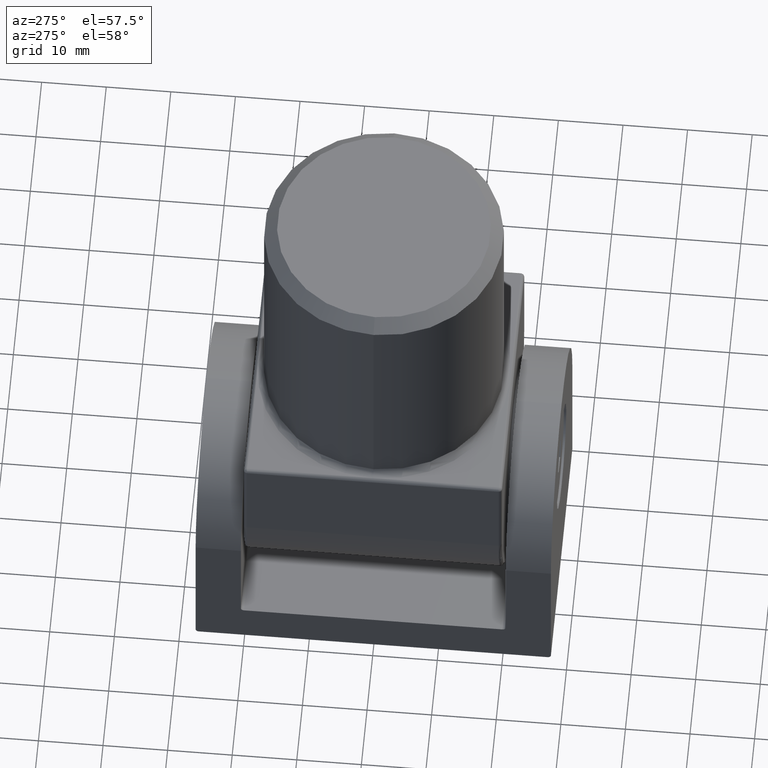
[diagram: clean part render]
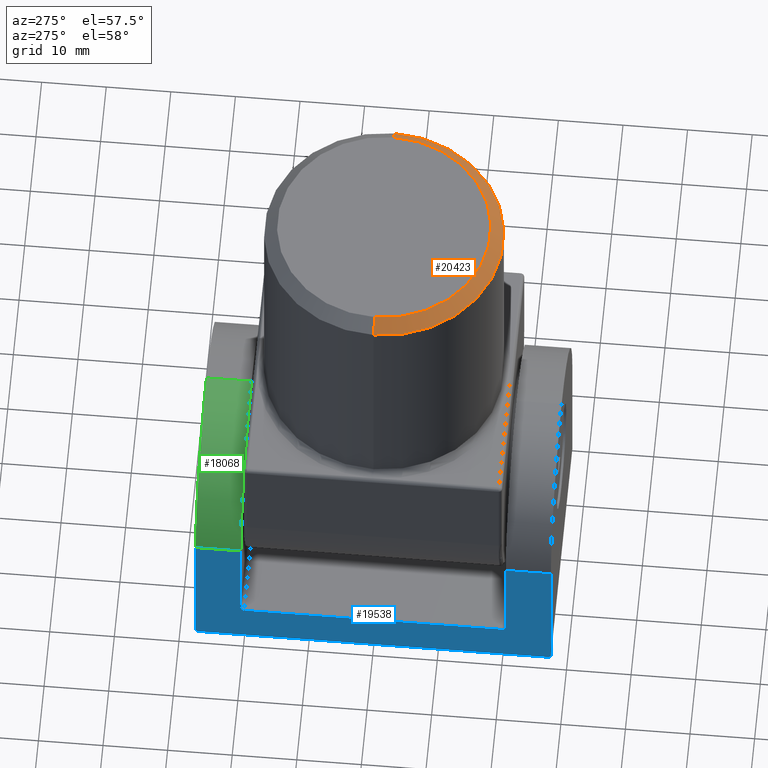
[diagram: same view with three faces highlighted in distinct colors, each labeled with its STEP entity id]
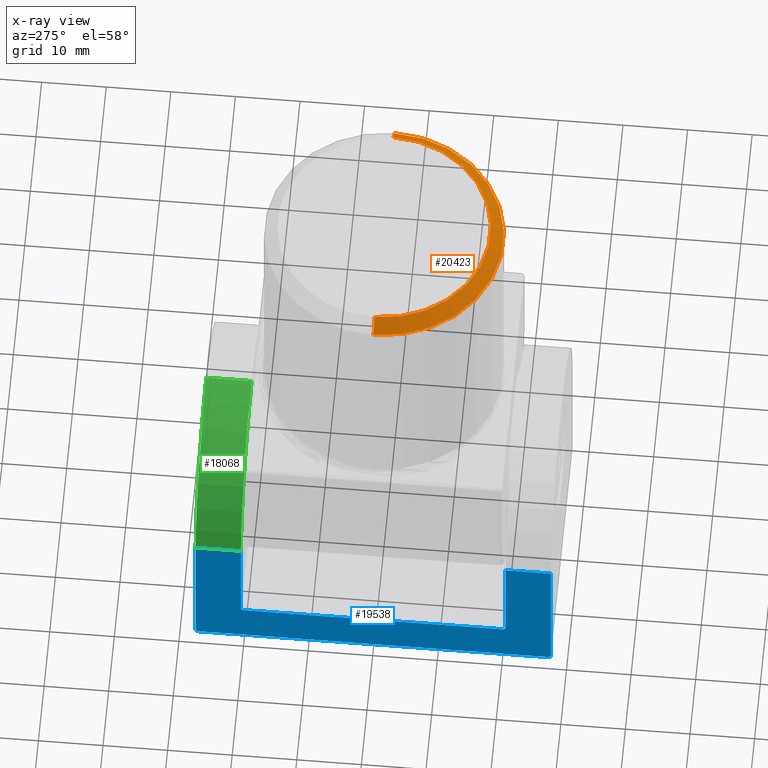
[diagram: x-ray of the same camera — body ghosted, the three highlighted faces saturated]
A machine part, auxiliary view with three faces highlighted in distinct colors.
The next image is the same camera in x-ray (body ghosted, the three faces saturated) — at least one of them is partly hidden behind the body in this view.
Their STEP definitions:

[orange] entity #20423 — the highlighted conical surface has half-angle 45 deg.
#1476 = EDGE_CURVE ( 'NONE', #18802, #10723, #3599, .T. ) ;
#1880 = VERTEX_POINT ( 'NONE', #8941 ) ;
#1917 = VERTEX_POINT ( 'NONE', #16874 ) ;
#2069 = CIRCLE ( 'NONE', #13037, 18.50000000000000000 ) ;
#3449 = DIRECTION ( 'NONE',  ( 0.7071067811865456854, 8.659560562354909439E-17, -0.7071067811865493491 ) ) ;
#3599 = CIRCLE ( 'NONE', #17921, 16.49999999999997158 ) ;
#3628 = CONICAL_SURFACE ( 'NONE', #14948, 16.49999999999997158, 0.7853981633974457255 ) ;
#3869 = DIRECTION ( 'NONE',  ( 0.000000000000000000, 0.000000000000000000, -1.000000000000000000 ) ) ;
#4084 = EDGE_CURVE ( 'NONE', #1880, #1917, #2069, .T. ) ;
#4573 = ORIENTED_EDGE ( 'NONE', *, *, #4084, .F. ) ;
#5184 = CARTESIAN_POINT ( 'NONE',  ( 0.000000000000000000, 0.000000000000000000, 39.49999999999996447 ) ) ;
#6080 = DIRECTION ( 'NONE',  ( 1.000000000000000000, 0.000000000000000000, 0.000000000000000000 ) ) ;
#6656 = CARTESIAN_POINT ( 'NONE',  ( 16.49999999999997158, 2.020667218593129550E-15, 41.50000000000000000 ) ) ;
#7646 = CARTESIAN_POINT ( 'NONE',  ( 0.000000000000000000, 0.000000000000000000, 41.50000000000000000 ) ) ;
#8941 = CARTESIAN_POINT ( 'NONE',  ( 18.50000000000000000, 2.265596578422603396E-15, 39.49999999999996447 ) ) ;
#9192 = EDGE_LOOP ( 'NONE', ( #11301, #13812, #17904, #4573 ) ) ;
#9896 = DIRECTION ( 'NONE',  ( 0.000000000000000000, 0.000000000000000000, -1.000000000000000000 ) ) ;
#10101 = DIRECTION ( 'NONE',  ( -1.000000000000000000, 0.000000000000000000, 0.000000000000000000 ) ) ;
#10723 = VERTEX_POINT ( 'NONE', #13197 ) ;
#10754 = FACE_OUTER_BOUND ( 'NONE', #9192, .T. ) ;
#10881 = DIRECTION ( 'NONE',  ( 0.000000000000000000, 0.000000000000000000, 1.000000000000000000 ) ) ;
#11091 = EDGE_CURVE ( 'NONE', #18802, #1917, #13005, .T. ) ;
#11301 = ORIENTED_EDGE ( 'NONE', *, *, #11834, .F. ) ;
#11496 = DIRECTION ( 'NONE',  ( 1.000000000000000000, 0.000000000000000000, 0.000000000000000000 ) ) ;
#11786 = VECTOR ( 'NONE', #13518, 1000.000000000000000 ) ;
#11834 = EDGE_CURVE ( 'NONE', #10723, #1880, #18853, .T. ) ;
#12041 = CARTESIAN_POINT ( 'NONE',  ( -16.49999999999997158, 0.000000000000000000, 41.50000000000000000 ) ) ;
#13005 = LINE ( 'NONE', #13580, #11786 ) ;
#13037 = AXIS2_PLACEMENT_3D ( 'NONE', #5184, #9896, #11496 ) ;
#13197 = CARTESIAN_POINT ( 'NONE',  ( 16.49999999999997158, 2.143131898507866276E-15, 41.50000000000000000 ) ) ;
#13518 = DIRECTION ( 'NONE',  ( -0.7071067811865456854, 0.000000000000000000, -0.7071067811865493491 ) ) ;
#13580 = CARTESIAN_POINT ( 'NONE',  ( -16.49999999999997158, 0.000000000000000000, 41.50000000000000000 ) ) ;
#13812 = ORIENTED_EDGE ( 'NONE', *, *, #1476, .F. ) ;
#14948 = AXIS2_PLACEMENT_3D ( 'NONE', #16262, #3869, #10101 ) ;
#15421 = VECTOR ( 'NONE', #3449, 1000.000000000000000 ) ;
#16262 = CARTESIAN_POINT ( 'NONE',  ( 0.000000000000000000, 0.000000000000000000, 41.50000000000000000 ) ) ;
#16874 = CARTESIAN_POINT ( 'NONE',  ( -18.50000000000000000, 0.000000000000000000, 39.49999999999996447 ) ) ;
#17904 = ORIENTED_EDGE ( 'NONE', *, *, #11091, .T. ) ;
#17921 = AXIS2_PLACEMENT_3D ( 'NONE', #7646, #10881, #6080 ) ;
#18802 = VERTEX_POINT ( 'NONE', #12041 ) ;
#18853 = LINE ( 'NONE', #6656, #15421 ) ;
#20423 = ADVANCED_FACE ( 'NONE', ( #10754 ), #3628, .T. ) ;

[blue] entity #19538 — the highlighted planar face has unit normal (1, 0, 0).
#118 = DIRECTION ( 'NONE',  ( -1.000000000000000000, -0.000000000000000000, -0.000000000000000000 ) ) ;
#243 = AXIS2_PLACEMENT_3D ( 'NONE', #13674, #3157, #7671 ) ;
#867 = CARTESIAN_POINT ( 'NONE',  ( -19.00000000000000000, 20.50000000000000000, 6.999999999999991118 ) ) ;
#994 = VERTEX_POINT ( 'NONE', #13068 ) ;
#1042 = CARTESIAN_POINT ( 'NONE',  ( -19.00000000000000000, -20.50000000000000000, 7.499999999999991118 ) ) ;
#1050 = CARTESIAN_POINT ( 'NONE',  ( -19.00000000000000000, -27.50000000000000000, 0.000000000000000000 ) ) ;
#1091 = CARTESIAN_POINT ( 'NONE',  ( -19.00000000000000000, 20.00000000000000000, 6.999999999999991118 ) ) ;
#1741 = CARTESIAN_POINT ( 'NONE',  ( -19.00000000000000000, 27.00000000000000000, 0.4999999999999935052 ) ) ;
#1924 = CIRCLE ( 'NONE', #3655, 0.5000000000000004441 ) ;
#1968 = VERTEX_POINT ( 'NONE', #1042 ) ;
#2161 = VERTEX_POINT ( 'NONE', #12913 ) ;
#2541 = DIRECTION ( 'NONE',  ( -0.000000000000000000, 1.000000000000000000, -1.629570337575107506E-16 ) ) ;
#2657 = ORIENTED_EDGE ( 'NONE', *, *, #16224, .F. ) ;
#2757 = DIRECTION ( 'NONE',  ( 0.000000000000000000, 0.000000000000000000, -1.000000000000000000 ) ) ;
#2823 = CARTESIAN_POINT ( 'NONE',  ( -19.00000000000000000, -20.00000000000000000, 7.499999999999991118 ) ) ;
#3157 = DIRECTION ( 'NONE',  ( -1.000000000000000000, -0.000000000000000000, -0.000000000000000000 ) ) ;
#3191 = VECTOR ( 'NONE', #15141, 1000.000000000000000 ) ;
#3375 = CARTESIAN_POINT ( 'NONE',  ( -19.00000000000000000, 0.000000000000000000, 23.99999999999999645 ) ) ;
#3655 = AXIS2_PLACEMENT_3D ( 'NONE', #12152, #6033, #2757 ) ;
#4054 = AXIS2_PLACEMENT_3D ( 'NONE', #2823, #7608, #5922 ) ;
#4189 = EDGE_CURVE ( 'NONE', #994, #6386, #6218, .T. ) ;
#4492 = VECTOR ( 'NONE', #11726, 1000.000000000000000 ) ;
#4502 = CARTESIAN_POINT ( 'NONE',  ( -19.00000000000000000, 20.50000000000000000, 7.499999999999992895 ) ) ;
#5151 = EDGE_CURVE ( 'NONE', #2161, #18901, #13612, .T. ) ;
#5170 = DIRECTION ( 'NONE',  ( -0.000000000000000000, 1.000000000000000000, -0.000000000000000000 ) ) ;
#5205 = ORIENTED_EDGE ( 'NONE', *, *, #5151, .T. ) ;
#5249 = DIRECTION ( 'NONE',  ( -0.000000000000000000, 1.000000000000000000, -0.000000000000000000 ) ) ;
#5475 = CARTESIAN_POINT ( 'NONE',  ( -19.00000000000000000, -27.50000000000000000, 23.99999999999999645 ) ) ;
#5654 = VECTOR ( 'NONE', #2541, 1000.000000000000000 ) ;
#5711 = VECTOR ( 'NONE', #8687, 1000.000000000000000 ) ;
#5772 = EDGE_CURVE ( 'NONE', #9342, #8486, #19333, .T. ) ;
#5922 = DIRECTION ( 'NONE',  ( 0.000000000000000000, 0.000000000000000000, -1.000000000000000000 ) ) ;
#6033 = DIRECTION ( 'NONE',  ( 1.000000000000000000, 0.000000000000000000, 0.000000000000000000 ) ) ;
#6218 = LINE ( 'NONE', #14661, #14097 ) ;
#6386 = VERTEX_POINT ( 'NONE', #11619 ) ;
#6390 = EDGE_LOOP ( 'NONE', ( #19861, #11192, #12576, #17992, #9701, #19524, #2657, #12967, #19224, #10065, #9389, #5205 ) ) ;
#6579 = CARTESIAN_POINT ( 'NONE',  ( -19.00000000000000000, -27.50000000000000000, 0.4999999999999998890 ) ) ;
#6680 = DIRECTION ( 'NONE',  ( 0.000000000000000000, 0.000000000000000000, -1.000000000000000000 ) ) ;
#7085 = EDGE_CURVE ( 'NONE', #1968, #17243, #17408, .T. ) ;
#7143 = EDGE_CURVE ( 'NONE', #12065, #15431, #1924, .T. ) ;
#7608 = DIRECTION ( 'NONE',  ( 1.000000000000000000, 0.000000000000000000, 0.000000000000000000 ) ) ;
#7671 = DIRECTION ( 'NONE',  ( 0.000000000000000000, 0.000000000000000000, -1.000000000000000000 ) ) ;
#8122 = CARTESIAN_POINT ( 'NONE',  ( -19.00000000000000000, 0.000000000000000000, 0.000000000000000000 ) ) ;
#8207 = LINE ( 'NONE', #10880, #8719 ) ;
#8286 = VERTEX_POINT ( 'NONE', #8347 ) ;
#8347 = CARTESIAN_POINT ( 'NONE',  ( -19.00000000000000000, -20.50000000000000355, 23.99999999999999645 ) ) ;
#8486 = VERTEX_POINT ( 'NONE', #6579 ) ;
#8687 = DIRECTION ( 'NONE',  ( 0.000000000000000000, -1.000000000000000000, 0.000000000000000000 ) ) ;
#8719 = VECTOR ( 'NONE', #12397, 1000.000000000000000 ) ;
#8814 = FACE_OUTER_BOUND ( 'NONE', #6390, .T. ) ;
#8853 = CARTESIAN_POINT ( 'NONE',  ( -19.00000000000000000, -20.00000000000000000, 6.999999999999991118 ) ) ;
#8948 = DIRECTION ( 'NONE',  ( -0.000000000000000000, -0.000000000000000000, -1.000000000000000000 ) ) ;
#9342 = VERTEX_POINT ( 'NONE', #17687 ) ;
#9389 = ORIENTED_EDGE ( 'NONE', *, *, #18861, .F. ) ;
#9627 = LINE ( 'NONE', #867, #5711 ) ;
#9701 = ORIENTED_EDGE ( 'NONE', *, *, #10088, .F. ) ;
#10065 = ORIENTED_EDGE ( 'NONE', *, *, #4189, .T. ) ;
#10088 = EDGE_CURVE ( 'NONE', #1968, #8286, #8207, .T. ) ;
#10360 = LINE ( 'NONE', #13369, #4492 ) ;
#10484 = LINE ( 'NONE', #3375, #11210 ) ;
#10696 = AXIS2_PLACEMENT_3D ( 'NONE', #8122, #16132, #6680 ) ;
#10880 = CARTESIAN_POINT ( 'NONE',  ( -19.00000000000000000, -20.50000000000000000, 6.999999999999991118 ) ) ;
#11066 = EDGE_CURVE ( 'NONE', #9342, #18901, #13503, .T. ) ;
#11137 = DIRECTION ( 'NONE',  ( 0.000000000000000000, 0.000000000000000000, -1.000000000000000000 ) ) ;
#11192 = ORIENTED_EDGE ( 'NONE', *, *, #5772, .T. ) ;
#11210 = VECTOR ( 'NONE', #5170, 1000.000000000000000 ) ;
#11579 = EDGE_CURVE ( 'NONE', #18405, #8486, #12988, .T. ) ;
#11619 = CARTESIAN_POINT ( 'NONE',  ( -19.00000000000000000, 27.50000000000000000, 23.99999999999999645 ) ) ;
#11726 = DIRECTION ( 'NONE',  ( 0.000000000000000000, 0.000000000000000000, -1.000000000000000000 ) ) ;
#11788 = LINE ( 'NONE', #15074, #3191 ) ;
#11810 = EDGE_CURVE ( 'NONE', #18405, #8286, #10484, .T. ) ;
#12065 = VERTEX_POINT ( 'NONE', #1091 ) ;
#12152 = CARTESIAN_POINT ( 'NONE',  ( -19.00000000000000000, 20.00000000000000000, 7.499999999999991118 ) ) ;
#12397 = DIRECTION ( 'NONE',  ( 0.000000000000000000, -1.927470528863118802E-16, 1.000000000000000000 ) ) ;
#12536 = AXIS2_PLACEMENT_3D ( 'NONE', #1741, #118, #11137 ) ;
#12576 = ORIENTED_EDGE ( 'NONE', *, *, #11579, .F. ) ;
#12913 = CARTESIAN_POINT ( 'NONE',  ( -19.00000000000000000, 27.50000000000000000, 0.4999999999999935052 ) ) ;
#12967 = ORIENTED_EDGE ( 'NONE', *, *, #7143, .T. ) ;
#12988 = LINE ( 'NONE', #1050, #15217 ) ;
#13068 = CARTESIAN_POINT ( 'NONE',  ( -19.00000000000000000, 20.50000000000000000, 23.99999999999999645 ) ) ;
#13369 = CARTESIAN_POINT ( 'NONE',  ( -19.00000000000000000, 20.50000000000000000, 43.00000000000000000 ) ) ;
#13503 = LINE ( 'NONE', #16630, #5654 ) ;
#13612 = CIRCLE ( 'NONE', #12536, 0.5000000000000000000 ) ;
#13674 = CARTESIAN_POINT ( 'NONE',  ( -19.00000000000000000, -27.00000000000000000, 0.4999999999999998890 ) ) ;
#14097 = VECTOR ( 'NONE', #5249, 1000.000000000000000 ) ;
#14661 = CARTESIAN_POINT ( 'NONE',  ( -19.00000000000000000, 0.000000000000000000, 23.99999999999999645 ) ) ;
#15074 = CARTESIAN_POINT ( 'NONE',  ( -19.00000000000000000, 27.50000000000000000, 43.00000000000000000 ) ) ;
#15141 = DIRECTION ( 'NONE',  ( -0.000000000000000000, -0.000000000000000000, 1.000000000000000000 ) ) ;
#15217 = VECTOR ( 'NONE', #8948, 1000.000000000000000 ) ;
#15431 = VERTEX_POINT ( 'NONE', #4502 ) ;
#15924 = EDGE_CURVE ( 'NONE', #994, #15431, #10360, .T. ) ;
#16132 = DIRECTION ( 'NONE',  ( 1.000000000000000000, 0.000000000000000000, 0.000000000000000000 ) ) ;
#16224 = EDGE_CURVE ( 'NONE', #12065, #17243, #9627, .T. ) ;
#16630 = CARTESIAN_POINT ( 'NONE',  ( -19.00000000000000000, 27.50000000000000000, -8.962636856663090566E-15 ) ) ;
#17243 = VERTEX_POINT ( 'NONE', #8853 ) ;
#17408 = CIRCLE ( 'NONE', #4054, 0.5000000000000004441 ) ;
#17687 = CARTESIAN_POINT ( 'NONE',  ( -19.00000000000000000, -27.00000000000000000, -8.147851687875413036E-17 ) ) ;
#17786 = PLANE ( 'NONE',  #10696 ) ;
#17992 = ORIENTED_EDGE ( 'NONE', *, *, #11810, .T. ) ;
#18405 = VERTEX_POINT ( 'NONE', #5475 ) ;
#18861 = EDGE_CURVE ( 'NONE', #2161, #6386, #11788, .T. ) ;
#18901 = VERTEX_POINT ( 'NONE', #19452 ) ;
#19224 = ORIENTED_EDGE ( 'NONE', *, *, #15924, .F. ) ;
#19333 = CIRCLE ( 'NONE', #243, 0.5000000000000000000 ) ;
#19452 = CARTESIAN_POINT ( 'NONE',  ( -19.00000000000000000, 27.00000000000000000, -8.881158339784333749E-15 ) ) ;
#19524 = ORIENTED_EDGE ( 'NONE', *, *, #7085, .T. ) ;
#19538 = ADVANCED_FACE ( 'NONE', ( #8814 ), #17786, .F. ) ;
#19861 = ORIENTED_EDGE ( 'NONE', *, *, #11066, .F. ) ;

[green] entity #18068 — the highlighted cylindrical surface (partial cylindrical patch) has radius 19 mm, axis along (0, -1, 0).
#464 = CYLINDRICAL_SURFACE ( 'NONE', #2428, 19.00000000000000000 ) ;
#486 = CARTESIAN_POINT ( 'NONE',  ( 0.000000000000000000, 27.50000000000000000, 43.00000000000000000 ) ) ;
#994 = VERTEX_POINT ( 'NONE', #13068 ) ;
#1581 = CARTESIAN_POINT ( 'NONE',  ( 0.000000000000000000, 27.50000000000000000, 23.99999999999999645 ) ) ;
#1727 = EDGE_CURVE ( 'NONE', #8535, #6054, #7251, .T. ) ;
#2072 = CIRCLE ( 'NONE', #19874, 19.00000000000000000 ) ;
#2384 = CARTESIAN_POINT ( 'NONE',  ( 0.000000000000000000, 27.50000000000000000, 23.99999999999999645 ) ) ;
#2428 = AXIS2_PLACEMENT_3D ( 'NONE', #1581, #12579, #3168 ) ;
#2967 = FACE_OUTER_BOUND ( 'NONE', #17938, .T. ) ;
#3168 = DIRECTION ( 'NONE',  ( 0.000000000000000000, 0.000000000000000000, -1.000000000000000000 ) ) ;
#3737 = DIRECTION ( 'NONE',  ( -0.000000000000000000, 1.000000000000000000, -0.000000000000000000 ) ) ;
#4189 = EDGE_CURVE ( 'NONE', #994, #6386, #6218, .T. ) ;
#4249 = ORIENTED_EDGE ( 'NONE', *, *, #15201, .F. ) ;
#5058 = DIRECTION ( 'NONE',  ( 0.000000000000000000, 0.000000000000000000, 1.000000000000000000 ) ) ;
#5249 = DIRECTION ( 'NONE',  ( -0.000000000000000000, 1.000000000000000000, -0.000000000000000000 ) ) ;
#5619 = DIRECTION ( 'NONE',  ( -0.000000000000000000, 1.000000000000000000, -0.000000000000000000 ) ) ;
#6054 = VERTEX_POINT ( 'NONE', #13757 ) ;
#6218 = LINE ( 'NONE', #14661, #14097 ) ;
#6386 = VERTEX_POINT ( 'NONE', #11619 ) ;
#6942 = CIRCLE ( 'NONE', #9613, 19.00000000000000000 ) ;
#7251 = LINE ( 'NONE', #486, #11939 ) ;
#8535 = VERTEX_POINT ( 'NONE', #17887 ) ;
#8780 = ORIENTED_EDGE ( 'NONE', *, *, #1727, .T. ) ;
#9613 = AXIS2_PLACEMENT_3D ( 'NONE', #2384, #5619, #18197 ) ;
#10299 = EDGE_CURVE ( 'NONE', #8535, #994, #2072, .T. ) ;
#10849 = ORIENTED_EDGE ( 'NONE', *, *, #4189, .F. ) ;
#11619 = CARTESIAN_POINT ( 'NONE',  ( -19.00000000000000000, 27.50000000000000000, 23.99999999999999645 ) ) ;
#11939 = VECTOR ( 'NONE', #3737, 1000.000000000000000 ) ;
#12579 = DIRECTION ( 'NONE',  ( 0.000000000000000000, -1.000000000000000000, 0.000000000000000000 ) ) ;
#13021 = CARTESIAN_POINT ( 'NONE',  ( 0.000000000000000000, 20.50000000000000000, 23.99999999999999645 ) ) ;
#13068 = CARTESIAN_POINT ( 'NONE',  ( -19.00000000000000000, 20.50000000000000000, 23.99999999999999645 ) ) ;
#13757 = CARTESIAN_POINT ( 'NONE',  ( 0.000000000000000000, 27.50000000000000000, 43.00000000000000000 ) ) ;
#14097 = VECTOR ( 'NONE', #5249, 1000.000000000000000 ) ;
#14597 = DIRECTION ( 'NONE',  ( 0.000000000000000000, -1.000000000000000000, -0.000000000000000000 ) ) ;
#14661 = CARTESIAN_POINT ( 'NONE',  ( -19.00000000000000000, 0.000000000000000000, 23.99999999999999645 ) ) ;
#15201 = EDGE_CURVE ( 'NONE', #6386, #6054, #6942, .T. ) ;
#16385 = ORIENTED_EDGE ( 'NONE', *, *, #10299, .F. ) ;
#17887 = CARTESIAN_POINT ( 'NONE',  ( 0.000000000000000000, 20.50000000000000000, 43.00000000000000000 ) ) ;
#17938 = EDGE_LOOP ( 'NONE', ( #4249, #10849, #16385, #8780 ) ) ;
#18068 = ADVANCED_FACE ( 'NONE', ( #2967 ), #464, .T. ) ;
#18197 = DIRECTION ( 'NONE',  ( 0.000000000000000000, 0.000000000000000000, -1.000000000000000000 ) ) ;
#19874 = AXIS2_PLACEMENT_3D ( 'NONE', #13021, #14597, #5058 ) ;